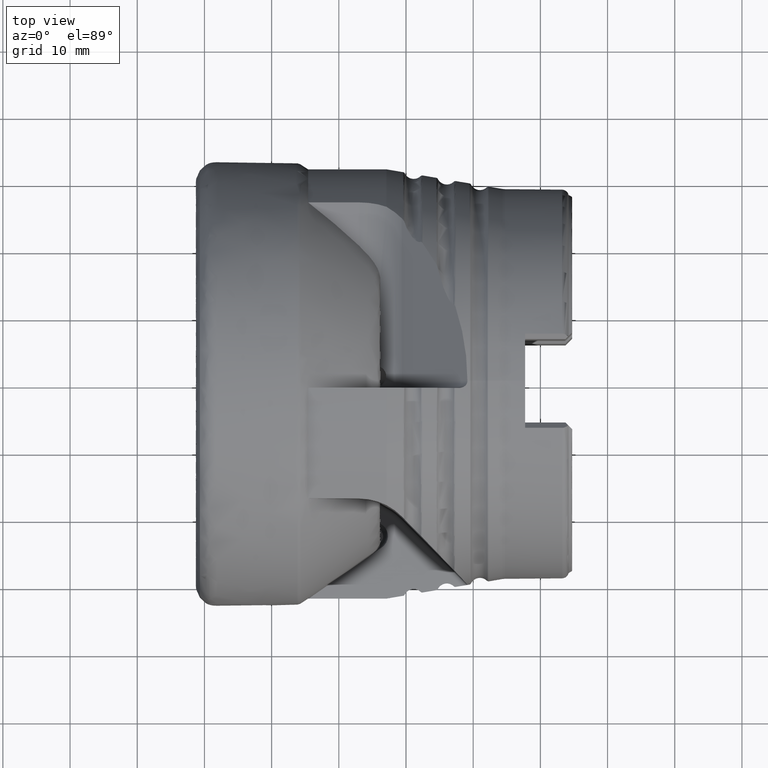
[diagram: clean part render]
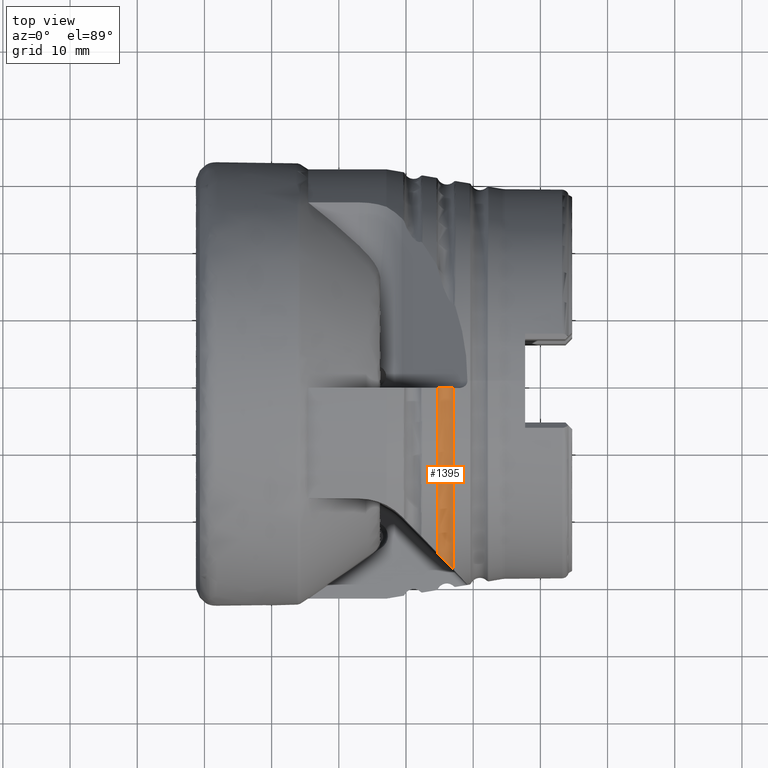
[diagram: same view with one face highlighted and labeled with its STEP entity id]
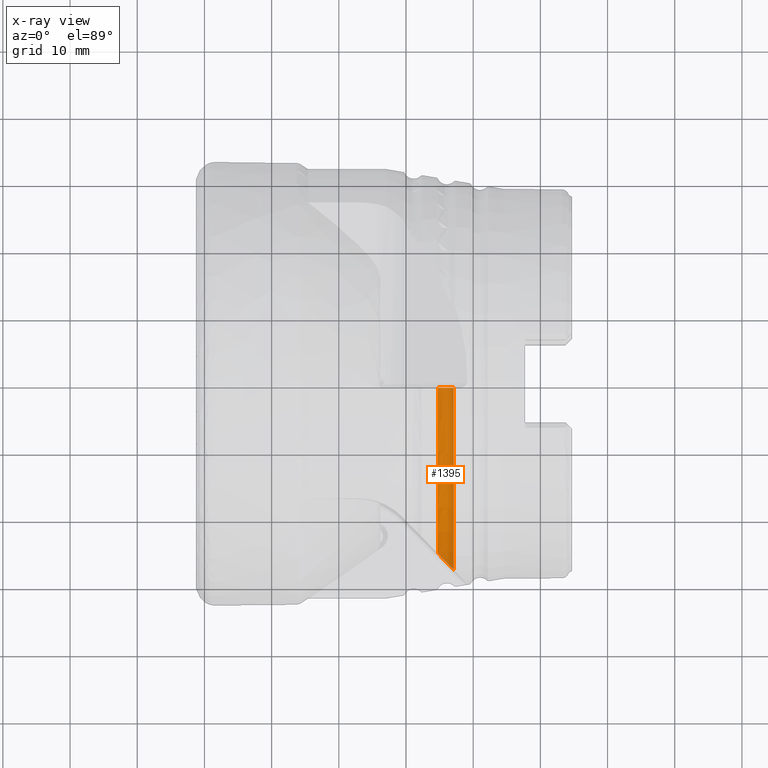
[diagram: x-ray of the same camera — body ghosted, the highlighted face saturated]
A machine part, top view. The second image highlights one B-rep face of the part: STEP entity #1395.
The next image is the same camera in x-ray: the body ghosted, the highlighted face saturated — about 0% of this face is hidden behind the body in this view.
In plain terms, the highlighted toroidal blend (fillet) surface has major radius 31.1968 mm and minor (blend) radius 1.5 mm.
Its self-contained STEP definition (entity closure, byte-faithful):
#15 = DIRECTION ( 'NONE',  ( -1.000000000000000000, -0.0000000000000000000, -0.0000000000000000000 ) ) ;
#246 = CARTESIAN_POINT ( 'NONE',  ( 36.91229892764986400, -27.68437686629195600, 11.42085471252253500 ) ) ;
#273 = CARTESIAN_POINT ( 'NONE',  ( 34.73246751454571100, -25.50454545318785500, 16.78324883199074700 ) ) ;
#788 = AXIS2_PLACEMENT_3D ( 'NONE', #2285, #2784, #2254 ) ;
#806 = CARTESIAN_POINT ( 'NONE',  ( 36.67205481566622200, -27.44413275430832800, 11.65970323690273200 ) ) ;
#930 = CARTESIAN_POINT ( 'NONE',  ( 37.10473438677373500, -27.87681232541583400, 11.36506396101317200 ) ) ;
#970 = TOROIDAL_SURFACE ( 'NONE', #788, 31.19684324908435600, 1.499999999999997300 ) ;
#1048 = EDGE_CURVE ( 'NONE', #4841, #2921, #6677, .T. ) ;
#1150 = FACE_OUTER_BOUND ( 'NONE', #1261, .T. ) ;
#1261 = EDGE_LOOP ( 'NONE', ( #4138, #4987, #5778, #6673 ) ) ;
#1262 = DIRECTION ( 'NONE',  ( -1.000000000000000000, -0.0000000000000000000, -0.0000000000000000000 ) ) ;
#1265 = AXIS2_PLACEMENT_3D ( 'NONE', #5845, #15, #6565 ) ;
#1312 = CARTESIAN_POINT ( 'NONE',  ( 34.73246751454922100, 0.0000000000000000000, 0.0000000000000000000 ) ) ;
#1329 = CARTESIAN_POINT ( 'NONE',  ( 36.34245242476837500, -27.11453036341048800, 12.16179104660814600 ) ) ;
#1367 = DIRECTION ( 'NONE',  ( 0.0000000000000000000, 0.0000000000000000000, 1.000000000000000000 ) ) ;
#1395 = ADVANCED_FACE ( 'NONE', ( #1150 ), #970, .F. ) ;
#1525 = CIRCLE ( 'NONE', #3771, 30.53128363056180900 ) ;
#1859 = CARTESIAN_POINT ( 'NONE',  ( 36.00663524627822200, -26.77871318492033100, 12.83589286257981900 ) ) ;
#2011 = CARTESIAN_POINT ( 'NONE',  ( 34.73246751454571100, -25.50454545318785500, 16.78324883199074700 ) ) ;
#2254 = DIRECTION ( 'NONE',  ( 0.0000000000000000000, 0.0000000000000000000, 1.000000000000000000 ) ) ;
#2285 = CARTESIAN_POINT ( 'NONE',  ( 36.07672582089964700, 0.0000000000000000000, 0.0000000000000000000 ) ) ;
#2351 = EDGE_CURVE ( 'NONE', #2921, #4812, #3240, .T. ) ;
#2414 = CARTESIAN_POINT ( 'NONE',  ( 35.70926109787025400, -26.48133903651236300, 13.53639328987175400 ) ) ;
#2577 = VERTEX_POINT ( 'NONE', #2011 ) ;
#2784 = DIRECTION ( 'NONE',  ( -1.000000000000000000, -0.0000000000000000000, -0.0000000000000000000 ) ) ;
#2921 = VERTEX_POINT ( 'NONE', #6682 ) ;
#2934 = CARTESIAN_POINT ( 'NONE',  ( 35.26804154584228700, -26.04011948448442100, 14.74076850438543400 ) ) ;
#3240 = B_SPLINE_CURVE_WITH_KNOTS ( 'NONE', 3,
 ( #4132, #4170, #4159, #4228, #4253, #4278, #4300, #4314, #4335, #4354, #4381, #4401 ),
 .UNSPECIFIED., .F., .F.,
 ( 4, 2, 2, 2, 2, 4 ),
 ( 0.007684277696194419600, 0.008380428547463677400, 0.008728503973098296700, 0.009076579398732916000, 0.009772730250002173800, 0.01046888110127143200 ),
 .UNSPECIFIED. ) ;
#3462 = CARTESIAN_POINT ( 'NONE',  ( 34.83488706843805000, -25.60696500708018800, 16.25129602129510800 ) ) ;
#3771 = AXIS2_PLACEMENT_3D ( 'NONE', #1312, #1262, #1367 ) ;
#3969 = CARTESIAN_POINT ( 'NONE',  ( 36.74704226040839900, -27.51912019905049400, 11.56820026010690800 ) ) ;
#4055 = EDGE_CURVE ( 'NONE', #2577, #4812, #1525, .T. ) ;
#4132 = CARTESIAN_POINT ( 'NONE',  ( 37.10473438675822400, -1.100000000000001900, 30.08440367141937000 ) ) ;
#4138 = ORIENTED_EDGE ( 'NONE', *, *, #6588, .F. ) ;
#4159 = CARTESIAN_POINT ( 'NONE',  ( 36.72731598583687400, -1.100000000000001900, 29.80517346983063800 ) ) ;
#4170 = CARTESIAN_POINT ( 'NONE',  ( 36.93520735754985700, -1.100000000000002300, 29.92475347080005200 ) ) ;
#4228 = CARTESIAN_POINT ( 'NONE',  ( 36.39340390322359300, -1.100000000000001900, 29.70570117841052800 ) ) ;
#4253 = CARTESIAN_POINT ( 'NONE',  ( 36.27635549723621700, -1.100000000000002100, 29.68527639596849000 ) ) ;
#4278 = CARTESIAN_POINT ( 'NONE',  ( 36.04425434563109600, -1.100000000000002100, 29.67231484310171300 ) ) ;
#4300 = CARTESIAN_POINT ( 'NONE',  ( 35.92810298167205500, -1.100000000000001900, 29.67921836662722500 ) ) ;
#4314 = CARTESIAN_POINT ( 'NONE',  ( 35.58072309505562500, -1.100000000000002300, 29.74147041747553300 ) ) ;
#4335 = CARTESIAN_POINT ( 'NONE',  ( 35.36201490766970300, -1.100000000000002100, 29.83736520231430200 ) ) ;
#4354 = CARTESIAN_POINT ( 'NONE',  ( 34.98943814230887000, -1.100000000000001600, 30.11747140274324500 ) ) ;
#4381 = CARTESIAN_POINT ( 'NONE',  ( 34.83605640421996700, -1.100000000000001900, 30.30210276322393500 ) ) ;
#4401 = CARTESIAN_POINT ( 'NONE',  ( 34.73246751454921400, -1.100000000000001900, 30.51146145516159100 ) ) ;
#4487 = CARTESIAN_POINT ( 'NONE',  ( 37.10473438677373500, -27.87681232541583400, 11.36506396101317200 ) ) ;
#4509 = CARTESIAN_POINT ( 'NONE',  ( 36.46362224868337200, -27.23570018732549900, 11.94734197563389900 ) ) ;
#4812 = VERTEX_POINT ( 'NONE', #6701 ) ;
#4841 = VERTEX_POINT ( 'NONE', #930 ) ;
#4986 = CARTESIAN_POINT ( 'NONE',  ( 37.00501423665075200, -27.77709217529284300, 11.36107305974315000 ) ) ;
#4987 = ORIENTED_EDGE ( 'NONE', *, *, #1048, .T. ) ;
#5007 = CARTESIAN_POINT ( 'NONE',  ( 36.11276955623036100, -26.88484749487246700, 12.60683637111103300 ) ) ;
#5535 = CARTESIAN_POINT ( 'NONE',  ( 35.80483613222594400, -26.57691407086806700, 13.30048720890256100 ) ) ;
#5764 = B_SPLINE_CURVE_WITH_KNOTS ( 'NONE', 3,
 ( #4487, #4986, #246, #3969, #806, #4509, #1329, #5007, #1859, #5535, #2414, #6070, #2934, #6597, #3462, #273 ),
 .UNSPECIFIED., .F., .F.,
 ( 4, 2, 2, 2, 2, 2, 2, 4 ),
 ( 2.763542846701325900E-007, 0.0004136732124138865400, 0.0008270700705431030000, 0.001653863786801530200, 0.002480657503059957700, 0.003307451219318384900, 0.004961038651835240400, 0.006614626084352096700 ),
 .UNSPECIFIED. ) ;
#5778 = ORIENTED_EDGE ( 'NONE', *, *, #2351, .T. ) ;
#5845 = CARTESIAN_POINT ( 'NONE',  ( 37.10473438677328100, 0.0000000000000000000, 0.0000000000000000000 ) ) ;
#6070 = CARTESIAN_POINT ( 'NONE',  ( 35.43491405067052100, -26.20699198931264500, 14.25250125430564700 ) ) ;
#6565 = DIRECTION ( 'NONE',  ( 0.0000000000000000000, 0.0000000000000000000, 1.000000000000000000 ) ) ;
#6588 = EDGE_CURVE ( 'NONE', #4841, #2577, #5764, .T. ) ;
#6597 = CARTESIAN_POINT ( 'NONE',  ( 34.96841377634717000, -25.74049171498931400, 15.74042732610783300 ) ) ;
#6673 = ORIENTED_EDGE ( 'NONE', *, *, #4055, .F. ) ;
#6677 = CIRCLE ( 'NONE', #1265, 30.10450704237397100 ) ;
#6682 = CARTESIAN_POINT ( 'NONE',  ( 37.10473438675822400, -1.100000000000001900, 30.08440367141937000 ) ) ;
#6701 = CARTESIAN_POINT ( 'NONE',  ( 34.73246751454921400, -1.100000000000001900, 30.51146145516159100 ) ) ;